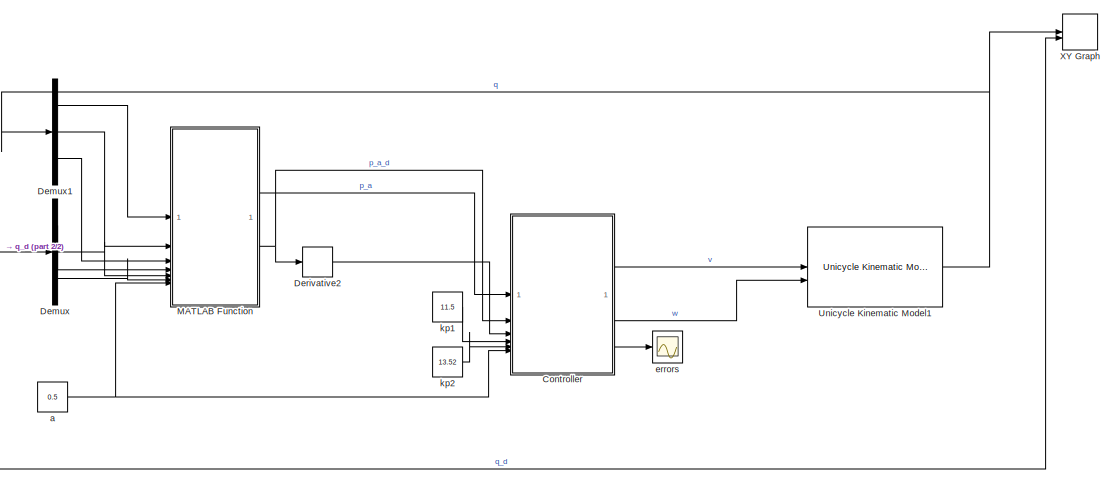
[diagram: root canvas - part 1/2, center side, full height]
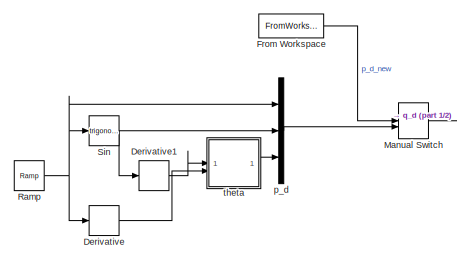
[diagram: root canvas - part 2/2, middle left region]
MODEL slx_2edd703d38da
KIND model
CONFIG AbsTol = auto
CONFIG EnableMultiTasking = off
CONFIG FixedStep = auto
CONFIG MaxStep = auto
CONFIG MinStep = auto
CONFIG RelTol = 1e-3
CONFIG SampleTimeConstraint = Unconstrained
CONFIG SolverName = VariableStepAuto
CONFIG StartTime = 0.0
CONFIG StopTime = 10
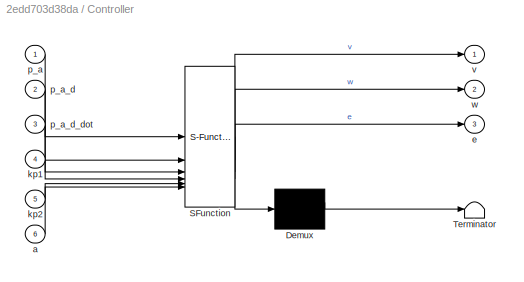
BLOCK [SubSystem] Controller
  ErrorFcn = Stateflow.Translate.translate
  PermitHierarchicalResolution = ExplicitOnly
  SFBlockType = MATLAB Function
  TreatAsAtomicUnit = on
BLOCK [Demux] Controller/ Demux 
  Outputs = 1
BLOCK [S-Function] Controller/ SFunction 
  EnableBusSupport = off
  FunctionName = sf_sfun
  PortCounts = [6 4]
  SFcnIsStateOwnerBlock = off
  SFunctionDeploymentMode = off
  Tag = Stateflow S-Function 1
BLOCK [Terminator] Controller/ Terminator 
BLOCK [Inport] Controller/a
  Port = 6
BLOCK [Outport] Controller/e
  Port = 3
BLOCK [Inport] Controller/kp1
  Port = 4
BLOCK [Inport] Controller/kp2
  Port = 5
BLOCK [Inport] Controller/p_a
BLOCK [Inport] Controller/p_a_d
  Port = 2
BLOCK [Inport] Controller/p_a_d_dot
  Port = 3
BLOCK [Outport] Controller/v
BLOCK [Outport] Controller/w
  Port = 2
BLOCK [Demux] Demux
  Outputs = 3
BLOCK [Demux] Demux1
  Outputs = 3
BLOCK [Derivative] Derivative
BLOCK [Derivative] Derivative1
BLOCK [Derivative] Derivative2
BLOCK [FromWorkspace] From Workspace
  VariableName = q_d_new
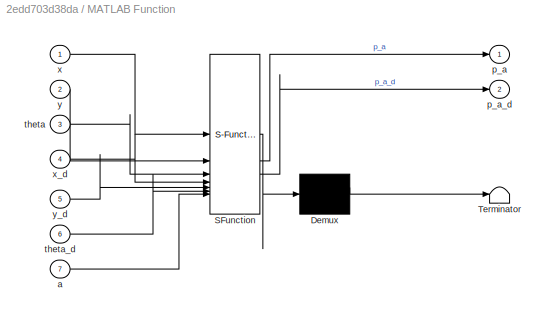
BLOCK [SubSystem] MATLAB Function
  ErrorFcn = Stateflow.Translate.translate
  PermitHierarchicalResolution = ExplicitOnly
  SFBlockType = MATLAB Function
  TreatAsAtomicUnit = on
BLOCK [Demux] MATLAB Function/ Demux 
  Outputs = 1
BLOCK [S-Function] MATLAB Function/ SFunction 
  EnableBusSupport = off
  FunctionName = sf_sfun
  PortCounts = [7 3]
  SFcnIsStateOwnerBlock = off
  SFunctionDeploymentMode = off
  Tag = Stateflow S-Function 4
BLOCK [Terminator] MATLAB Function/ Terminator 
BLOCK [Inport] MATLAB Function/a
  Port = 7
BLOCK [Outport] MATLAB Function/p_a
BLOCK [Outport] MATLAB Function/p_a_d
  Port = 2
BLOCK [Inport] MATLAB Function/theta
  Port = 3
BLOCK [Inport] MATLAB Function/theta_d
  Port = 6
BLOCK [Inport] MATLAB Function/x
BLOCK [Inport] MATLAB Function/x_d
  Port = 4
BLOCK [Inport] MATLAB Function/y
  Port = 2
BLOCK [Inport] MATLAB Function/y_d
  Port = 5
BLOCK [ManualSwitch] Manual Switch
BLOCK [Reference] Ramp  REF=simulink/Sources/Ramp
  SourceBlock = simulink/Sources/Ramp
  SourceType = Ramp
BLOCK [Trigonometry] Sin
BLOCK [Reference] Unicycle Kinematic Model1  REF=robotmobilelib/Unicycle Kinematic Model
  SourceBlock = robotmobilelib/Unicycle Kinematic Model
  SourceType = Unicycle Kinematic Model
BLOCK [Record] XY Graph
  CompatibilityTag = XY
  FileSettingsInternal = {"entries":[{"content":{"excelSettings":{"content":{},"type":"Streamout.ExcelSettings"},"parquetSettings":{"content":{},"type":"Streamout.ParquetSettings"}},"type":"Streamout.FileSettingStorage","uuid":""}],"packageUris":["http:\/\/schema.mathworks.com\/mf0\/streamout_blocks\/R2020a"],"version":"1.0"}
  FrameSettings = [0, 0]
  Layout = [1 1]
  NumPorts = 2.0
  SignalsInternal = {"entries":[{"content":{"signals":[{"content":{"blockPath":[],"dimensions":[3],"domain":"","hasChildren":true,"lineColor":"#fe330a","lineWidth":2,"port":1,"sid":[""],"signalID":1,"signalName":"q"},"type":"RecordBlkView.Signal","uuid":""},{"content":{"blockPath":[],"channel":[1],"dimensions":[3],"domain":"","lineColor":"#22b573","lineWidth":2,"parentID":1,"plots":[ 1 ],"port":1,"sid":[""],"signalID...<+1516ch>
  VisualizationBindings = {"xyplotplugin":{"info":[{"series":[{"bindingParametersList":[{"parameter":"X-Axis","signalID":4,"signalName":"q_d(1)"},{"parameter":"Y-Axis","signalID":7,"signalName":"q_d(2)"}],"seriesID":0},{"bindingParametersList":[{"parameter":"X-Axis","signalID":2,"signalName":"q(1)"},{"parameter":"Y-Axis","signalID":5,"signalName":"q(2)"}],"seriesID":1}],"subplotID":1}]}}
BLOCK [Constant] a
  Value = 0.5
BLOCK [Scope] errors
  ActiveDisplayYMaximum = 0.0900014086361547
  ActiveDisplayYMinimum = -0.80222452395317112
  DataLoggingVariableName = ScopeData1
  DisplayFullPath = on
  Floating = off
  GraphicalSettings = {"Style":{"BackgroundColor":[0.12941176470588237,0.12941176470588237,0.12941176470588237],"AxesColor":[0.07058823529411765,0.07058823529411765,0.07058823529411765],"LabelsColor":[0.8509803921568627,0.8509803921568627,0.8509803921568627],"PreserveColors":false,"Visible":[true,true],"LineStyle":["-","-"],"LineWidth":[1.5,1.5],"BarWidth":[0.9,0.9],"LineColor":["auto","auto"],"LineFaceAlpha":[1,1],"Li...<+2140ch>
  MultipleDisplayCache = [{"MaxYLimMag":0.80222452395317112,"MaxYLimReal":0.0900014086361547,"MinYLimMag":0,"MinYLimReal":-0.80222452395317112,"PlotAsMagnitudePhase":false,"ShowGrid":true,"ShowLegend":true,"Title":"%<SignalLabel>","YLabel":""}]
  NumInputPorts = 1
  ScopeFrameLocation = window
  ShowLegend = on
  WasSavedAsWebScope = on
  WindowPosition = [233.000000,102.000000,1150.000000,608.000000,]
BLOCK [Constant] kp1
  Value = 11.5
BLOCK [Constant] kp2
  Value = 13.52
BLOCK [Mux] p_d
  DisplayOption = bar
  Inputs = 3
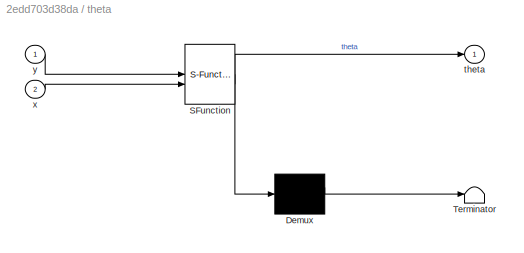
BLOCK [SubSystem] theta
  ErrorFcn = Stateflow.Translate.translate
  PermitHierarchicalResolution = ExplicitOnly
  SFBlockType = MATLAB Function
  TreatAsAtomicUnit = on
BLOCK [Demux] theta/ Demux 
  Outputs = 1
BLOCK [S-Function] theta/ SFunction 
  EnableBusSupport = off
  FunctionName = sf_sfun
  PortCounts = [2 2]
  SFcnIsStateOwnerBlock = off
  SFunctionDeploymentMode = off
  Tag = Stateflow S-Function 3
BLOCK [Terminator] theta/ Terminator 
BLOCK [Outport] theta/theta
BLOCK [Inport] theta/x
  Port = 2
BLOCK [Inport] theta/y
LINE Controller:1 -> Unicycle Kinematic Model1:1
LINE Controller:2 -> Unicycle Kinematic Model1:2
LINE Controller:3 -> errors:1
LINE Demux1:1 -> MATLAB Function:1
LINE Demux1:2 -> MATLAB Function:2
LINE Demux1:3 -> MATLAB Function:3
LINE Demux:1 -> MATLAB Function:4
LINE Demux:2 -> MATLAB Function:5
LINE Demux:3 -> MATLAB Function:6
LINE Derivative1:1 -> theta:1
LINE Derivative2:1 -> Controller:3
LINE Derivative:1 -> theta:2
LINE From Workspace:1 -> Manual Switch:1
LINE MATLAB Function:1 -> Controller:1
NET MATLAB Function:2 -> Controller:2, Derivative2:1
NET Manual Switch:1 -> Demux:1, XY Graph:2
NET Ramp:1 -> Derivative:1, Sin:1, p_d:1
NET Sin:1 -> Derivative1:1, p_d:2
NET Unicycle Kinematic Model1:1 -> Demux1:1, XY Graph:1
NET a:1 -> Controller:6, MATLAB Function:7
LINE kp1:1 -> Controller:4
LINE kp2:1 -> Controller:5
LINE p_d:1 -> Manual Switch:2
LINE theta:1 -> p_d:3
note: NET lines group one-source signal fan-out (src -> all destinations, sorted); 1:1 wires keep LINE
CHART Controller states=1 transitions=1
  STATE_LABEL 'eML_blk_kernel()'
  STATE_LABEL 'SCRIPT:\nfunction [v, w, e]= ctrl(p_a , p_a_d, p_a_d_dot, kp1, kp2, a)\n\n% Get desired state\nx_a_d = p_a_d(1);\ny_a_d = p_a_d(2);\n\n% Get desired velocity state\nx_a_d_dot = p_a_d_dot(1);\ny_a_d_dot = p_a_d_dot(2);\n\n% If p_a_d_dot is Inf or NaN at the start we put to 0\nif ~isfinite(x_a_d_dot), x_a_d_dot = 0; end\nif ~isfinite(y_a_d_dot), y_a_d_dot = 0; end\n\n% Get (real) theta\nx_a = p_a(1);\ny_a = p_a(2);\n...<+426ch>'
CHART theta states=1 transitions=1
  STATE_LABEL 'eML_blk_kernel()'
  STATE_LABEL 'SCRIPT:\nfunction theta = atan2(y, x)\n\ntheta = atan2(y, x);\n\n'
CHART MATLAB Function states=1 transitions=1
  STATE_LABEL 'eML_blk_kernel()'
  STATE_LABEL 'SCRIPT:\nfunction [p_a, p_a_d] = p2A(x, y, theta, x_d, y_d, theta_d, a)\n\n% Computing reference trajectory with the com translated\nx_a_d = x_d + a * cos(theta_d);\ny_a_d = y_d + a * sin(theta_d);\n\n% UNCOMMENT for square (in tuning)\n%x_a_d = x_d;\n%y_a_d = y_d;    \n    \n\n% Computing actual state with the com translated\nx_a = x + a * cos(theta);\ny_a = y + a * sin(theta);\n\n% Output the P2A transformation...<+63ch>'
CHART  states=0 transitions=0
CHART  states=0 transitions=0
CHART  states=0 transitions=0
